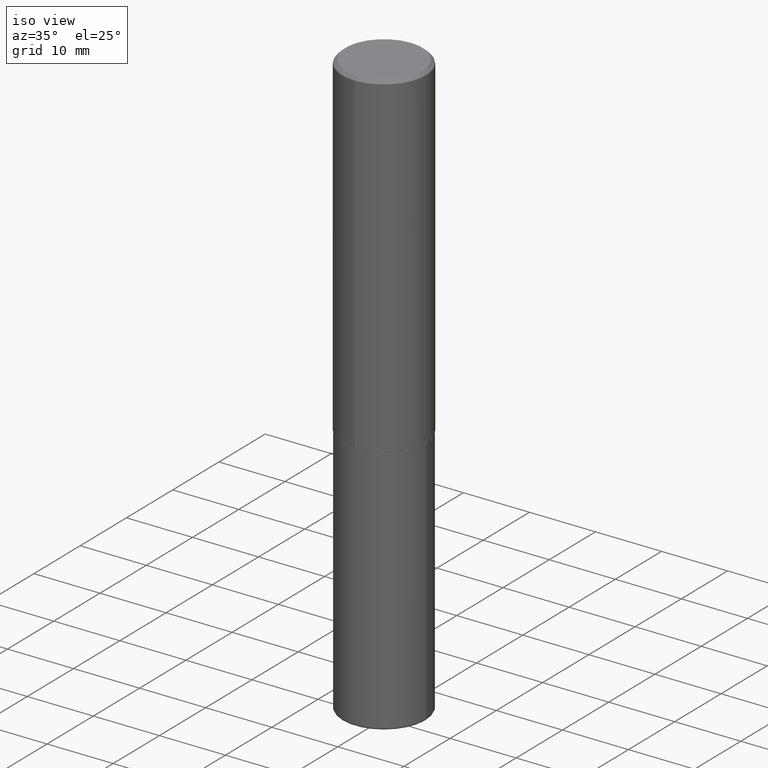
[diagram: clean part render]
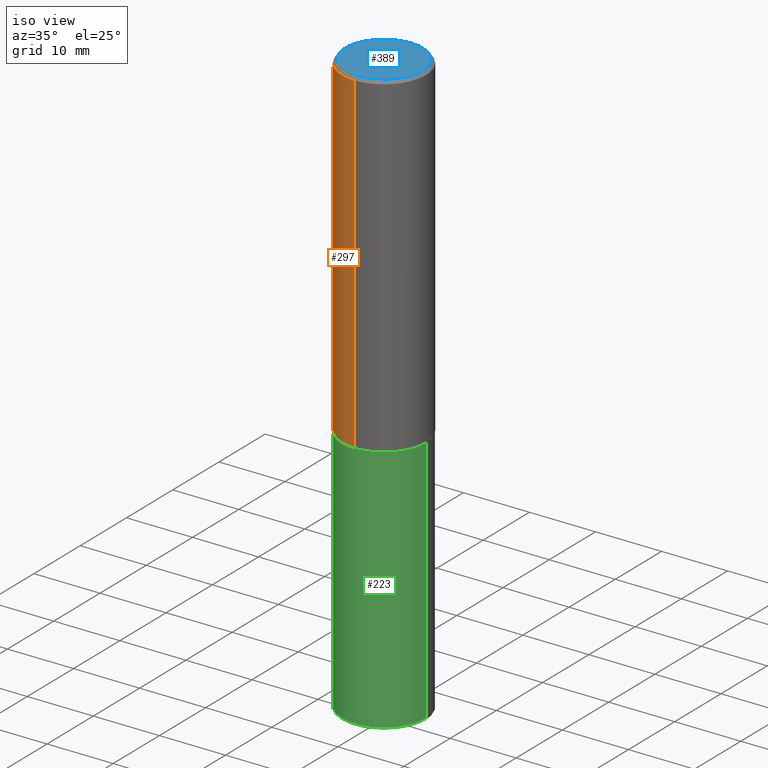
[diagram: same view with three faces highlighted in distinct colors, each labeled with its STEP entity id]
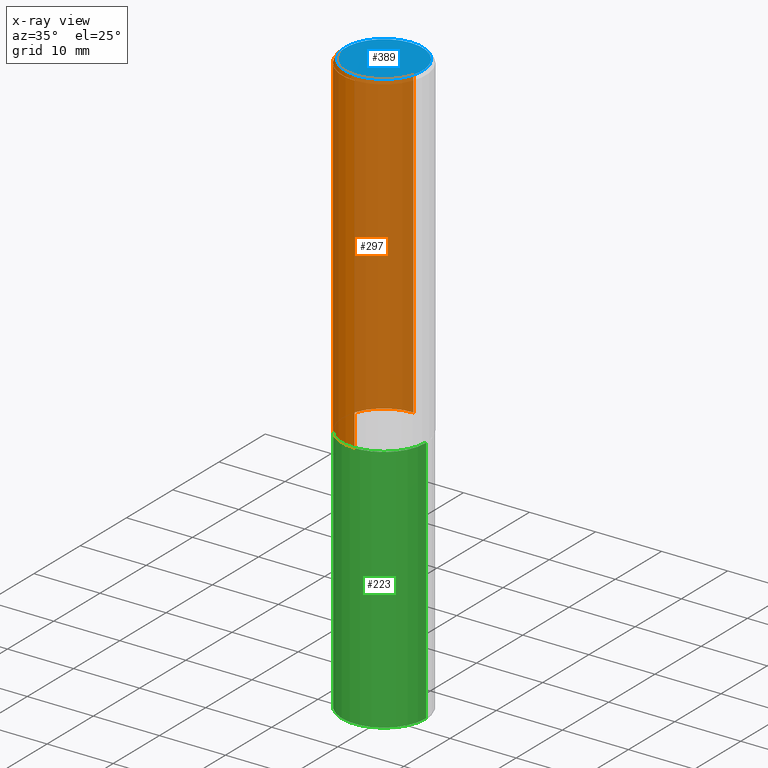
[diagram: x-ray of the same camera — body ghosted, the three highlighted faces saturated]
A machine part, iso view with three faces highlighted in distinct colors.
The next image is the same camera in x-ray (body ghosted, the three faces saturated) — at least one of them is partly hidden behind the body in this view.
Their STEP definitions:

[orange] entity #297 — the highlighted cylindrical surface (partial cylindrical patch) has radius 6.35 mm, axis along (-0, 0, 1).
#1 = VECTOR ( 'NONE', #283, 39.37007874015748143 ) ;
#3 = LINE ( 'NONE', #359, #1 ) ;
#14 = CARTESIAN_POINT ( 'NONE',  ( 1.776356839400276103E-15, 0.2499999999999933109, -1.999000000000000554 ) ) ;
#40 = CIRCLE ( 'NONE', #263, 0.2500000000000002776 ) ;
#42 = DIRECTION ( 'NONE',  ( -6.982962677686265922E-15, -1.000000000000000000, 3.278217592397112312E-15 ) ) ;
#44 = DIRECTION ( 'NONE',  ( -6.982962677686265922E-15, -1.000000000000000000, 3.483106191921935554E-15 ) ) ;
#47 = DIRECTION ( 'NONE',  ( -2.445737183286911680E-29, 3.491097007558327602E-15, 1.000000000000000000 ) ) ;
#56 = VERTEX_POINT ( 'NONE', #408 ) ;
#57 = ORIENTED_EDGE ( 'NONE', *, *, #399, .T. ) ;
#61 = AXIS2_PLACEMENT_3D ( 'NONE', #137, #401, #44 ) ;
#80 = LINE ( 'NONE', #375, #207 ) ;
#94 = EDGE_CURVE ( 'NONE', #307, #56, #40, .T. ) ;
#129 = EDGE_CURVE ( 'NONE', #387, #310, #190, .T. ) ;
#137 = CARTESIAN_POINT ( 'NONE',  ( 4.891474366573836672E-31, -6.982194015116674235E-17, -0.02000000000000005593 ) ) ;
#150 = AXIS2_PLACEMENT_3D ( 'NONE', #366, #47, #292 ) ;
#167 = EDGE_CURVE ( 'NONE', #307, #387, #80, .T. ) ;
#176 = CARTESIAN_POINT ( 'NONE',  ( -1.715124499442882299E-15, -0.2500000000000000555, -0.01999999999999918510 ) ) ;
#188 = CARTESIAN_POINT ( 'NONE',  ( 4.889028629390535480E-29, -6.978702918109095527E-15, -1.998999999999999666 ) ) ;
#190 = CIRCLE ( 'NONE', #61, 0.2500000000000000000 ) ;
#204 = ORIENTED_EDGE ( 'NONE', *, *, #94, .T. ) ;
#207 = VECTOR ( 'NONE', #346, 39.37007874015748143 ) ;
#263 = AXIS2_PLACEMENT_3D ( 'NONE', #188, #315, #42 ) ;
#270 = EDGE_LOOP ( 'NONE', ( #350, #204, #57, #412 ) ) ;
#283 = DIRECTION ( 'NONE',  ( -2.445737183286911680E-29, 3.491097007558327602E-15, 1.000000000000000000 ) ) ;
#292 = DIRECTION ( 'NONE',  ( -6.982962677686266711E-15, -1.000000000000000000, 3.491097007558327996E-15 ) ) ;
#297 = ADVANCED_FACE ( 'NONE', ( #358 ), #320, .T. ) ;
#307 = VERTEX_POINT ( 'NONE', #14 ) ;
#310 = VERTEX_POINT ( 'NONE', #176 ) ;
#315 = DIRECTION ( 'NONE',  ( -2.445737183286911680E-29, 3.491097007558327602E-15, 1.000000000000000000 ) ) ;
#320 = CYLINDRICAL_SURFACE ( 'NONE', #150, 0.2500000000000001110 ) ;
#346 = DIRECTION ( 'NONE',  ( -2.445737183286911680E-29, 3.491097007558327602E-15, 1.000000000000000000 ) ) ;
#350 = ORIENTED_EDGE ( 'NONE', *, *, #167, .F. ) ;
#358 = FACE_OUTER_BOUND ( 'NONE', #270, .T. ) ;
#359 = CARTESIAN_POINT ( 'NONE',  ( -1.745740669421567467E-15, -0.2500000000000001110, 8.727742518895823935E-16 ) ) ;
#366 = CARTESIAN_POINT ( 'NONE',  ( 0.000000000000000000, 0.000000000000000000, 0.000000000000000000 ) ) ;
#375 = CARTESIAN_POINT ( 'NONE',  ( 1.776356839400251254E-15, 0.2500000000000001110, -8.727742518895823935E-16 ) ) ;
#387 = VERTEX_POINT ( 'NONE', #390 ) ;
#390 = CARTESIAN_POINT ( 'NONE',  ( 1.745740669421566875E-15, 0.2499999999999999167, -0.02000000000000092676 ) ) ;
#399 = EDGE_CURVE ( 'NONE', #56, #310, #3, .T. ) ;
#401 = DIRECTION ( 'NONE',  ( -2.445737183286911680E-29, 3.491097007558327602E-15, 1.000000000000000000 ) ) ;
#408 = CARTESIAN_POINT ( 'NONE',  ( -1.745740669421519543E-15, -0.2500000000000072164, -1.998999999999998778 ) ) ;
#412 = ORIENTED_EDGE ( 'NONE', *, *, #129, .F. ) ;

[blue] entity #389 — the highlighted planar face has unit normal (0, -0, -1).
#19 = VERTEX_POINT ( 'NONE', #146 ) ;
#78 = ORIENTED_EDGE ( 'NONE', *, *, #316, .T. ) ;
#91 = EDGE_LOOP ( 'NONE', ( #264, #78 ) ) ;
#113 = EDGE_CURVE ( 'NONE', #19, #245, #287, .T. ) ;
#123 = DIRECTION ( 'NONE',  ( 2.445737183286911400E-29, -3.491097007558327602E-15, -1.000000000000000000 ) ) ;
#131 = DIRECTION ( 'NONE',  ( -6.982962677686265922E-15, -1.000000000000000000, 3.491097007558327207E-15 ) ) ;
#134 = AXIS2_PLACEMENT_3D ( 'NONE', #291, #191, #131 ) ;
#146 = CARTESIAN_POINT ( 'NONE',  ( 1.675911042644703774E-15, 0.2299999999999999822, -8.286517828745257562E-16 ) ) ;
#157 = DIRECTION ( 'NONE',  ( 6.982962677686265922E-15, 1.000000000000000000, -3.491097007558327602E-15 ) ) ;
#163 = FACE_OUTER_BOUND ( 'NONE', #91, .T. ) ;
#175 = AXIS2_PLACEMENT_3D ( 'NONE', #314, #123, #157 ) ;
#191 = DIRECTION ( 'NONE',  ( -2.445737183286911680E-29, 3.491097007558327602E-15, 1.000000000000000000 ) ) ;
#193 = CARTESIAN_POINT ( 'NONE',  ( 6.285415214839433991E-46, -8.971934677910720830E-32, -2.569947113611056727E-17 ) ) ;
#222 = PLANE ( 'NONE',  #175 ) ;
#235 = AXIS2_PLACEMENT_3D ( 'NONE', #193, #261, #286 ) ;
#245 = VERTEX_POINT ( 'NONE', #413 ) ;
#261 = DIRECTION ( 'NONE',  ( -2.445737183286911680E-29, 3.491097007558327602E-15, 1.000000000000000000 ) ) ;
#264 = ORIENTED_EDGE ( 'NONE', *, *, #113, .T. ) ;
#286 = DIRECTION ( 'NONE',  ( -6.982962677686265922E-15, -1.000000000000000000, 3.491097007558327207E-15 ) ) ;
#287 = CIRCLE ( 'NONE', #134, 0.2299999999999999822 ) ;
#291 = CARTESIAN_POINT ( 'NONE',  ( 6.285415214839433991E-46, -8.971934677910720830E-32, -2.569947113611056727E-17 ) ) ;
#314 = CARTESIAN_POINT ( 'NONE',  ( 1.606081415867841067E-15, 0.2299999999999999822, -8.158020473064706174E-16 ) ) ;
#316 = EDGE_CURVE ( 'NONE', #245, #19, #371, .T. ) ;
#371 = CIRCLE ( 'NONE', #235, 0.2299999999999999822 ) ;
#389 = ADVANCED_FACE ( 'NONE', ( #163 ), #222, .F. ) ;
#413 = CARTESIAN_POINT ( 'NONE',  ( -1.646519519465166968E-15, -0.2299999999999999822, 7.772528406023046093E-16 ) ) ;

[green] entity #223 — the highlighted cylindrical surface (partial cylindrical patch) has radius 6.35 mm, axis along (-0, 0, 1).
#15 = AXIS2_PLACEMENT_3D ( 'NONE', #49, #404, #141 ) ;
#17 = CARTESIAN_POINT ( 'NONE',  ( 0.000000000000000000, 0.000000000000000000, 0.000000000000000000 ) ) ;
#18 = VERTEX_POINT ( 'NONE', #326 ) ;
#28 = AXIS2_PLACEMENT_3D ( 'NONE', #114, #230, #333 ) ;
#32 = CARTESIAN_POINT ( 'NONE',  ( 0.2500000000000000000, -1.745740669421566678E-15, 1.219044193948983948E-29 ) ) ;
#49 = CARTESIAN_POINT ( 'NONE',  ( 4.890937612370272633E-29, -6.982962677686290376E-15, -1.999999999999999778 ) ) ;
#67 = AXIS2_PLACEMENT_3D ( 'NONE', #17, #203, #370 ) ;
#69 = CARTESIAN_POINT ( 'NONE',  ( -0.2500000000000000000, -7.799030732377074474E-15, -1.999999999999999778 ) ) ;
#73 = LINE ( 'NONE', #279, #184 ) ;
#74 = CARTESIAN_POINT ( 'NONE',  ( 0.2500000000000000000, -8.728703347107857054E-15, -1.999999999999999778 ) ) ;
#77 = EDGE_CURVE ( 'NONE', #18, #272, #200, .T. ) ;
#86 = CYLINDRICAL_SURFACE ( 'NONE', #67, 0.2500000000000000000 ) ;
#97 = CARTESIAN_POINT ( 'NONE',  ( 0.2499999999999999167, -1.391355313528992618E-14, -3.484999999999999432 ) ) ;
#101 = EDGE_CURVE ( 'NONE', #272, #328, #219, .T. ) ;
#114 = CARTESIAN_POINT ( 'NONE',  ( 8.522458789555200771E-29, -1.216781246586836108E-14, -3.484999999999999432 ) ) ;
#128 = DIRECTION ( 'NONE',  ( -2.445468806185136877E-29, 3.491481338843145188E-15, 1.000000000000000000 ) ) ;
#141 = DIRECTION ( 'NONE',  ( 1.000000000000000000, -6.982962677686266711E-15, 0.000000000000000000 ) ) ;
#145 = ORIENTED_EDGE ( 'NONE', *, *, #77, .T. ) ;
#158 = FACE_OUTER_BOUND ( 'NONE', #376, .T. ) ;
#182 = ORIENTED_EDGE ( 'NONE', *, *, #361, .F. ) ;
#184 = VECTOR ( 'NONE', #128, 39.37007874015748143 ) ;
#187 = DIRECTION ( 'NONE',  ( -2.445468806185136877E-29, 3.491481338843145188E-15, 1.000000000000000000 ) ) ;
#197 = EDGE_CURVE ( 'NONE', #18, #343, #73, .T. ) ;
#200 = CIRCLE ( 'NONE', #28, 0.2500000000000000000 ) ;
#203 = DIRECTION ( 'NONE',  ( -2.445468806185136597E-29, 3.491481338843145583E-15, 1.000000000000000000 ) ) ;
#219 = LINE ( 'NONE', #32, #243 ) ;
#223 = ADVANCED_FACE ( 'NONE', ( #158 ), #86, .T. ) ;
#230 = DIRECTION ( 'NONE',  ( -2.445468806185136597E-29, 3.491481338843145583E-15, 1.000000000000000000 ) ) ;
#238 = ORIENTED_EDGE ( 'NONE', *, *, #197, .F. ) ;
#243 = VECTOR ( 'NONE', #187, 39.37007874015748143 ) ;
#272 = VERTEX_POINT ( 'NONE', #97 ) ;
#279 = CARTESIAN_POINT ( 'NONE',  ( -0.2500000000000000000, 1.776356839400250465E-15, -1.229733772563726445E-29 ) ) ;
#326 = CARTESIAN_POINT ( 'NONE',  ( -0.2499999999999999167, -1.039145562646811219E-14, -3.484999999999999432 ) ) ;
#328 = VERTEX_POINT ( 'NONE', #74 ) ;
#331 = CIRCLE ( 'NONE', #15, 0.2500000000000000000 ) ;
#333 = DIRECTION ( 'NONE',  ( 1.000000000000000000, -6.982962677686262766E-15, 0.000000000000000000 ) ) ;
#343 = VERTEX_POINT ( 'NONE', #69 ) ;
#347 = ORIENTED_EDGE ( 'NONE', *, *, #101, .T. ) ;
#361 = EDGE_CURVE ( 'NONE', #343, #328, #331, .T. ) ;
#370 = DIRECTION ( 'NONE',  ( 1.000000000000000000, -6.982962677686266711E-15, 4.876176775795935793E-29 ) ) ;
#376 = EDGE_LOOP ( 'NONE', ( #238, #145, #347, #182 ) ) ;
#404 = DIRECTION ( 'NONE',  ( -2.445468806185136597E-29, 3.491481338843145583E-15, 1.000000000000000000 ) ) ;